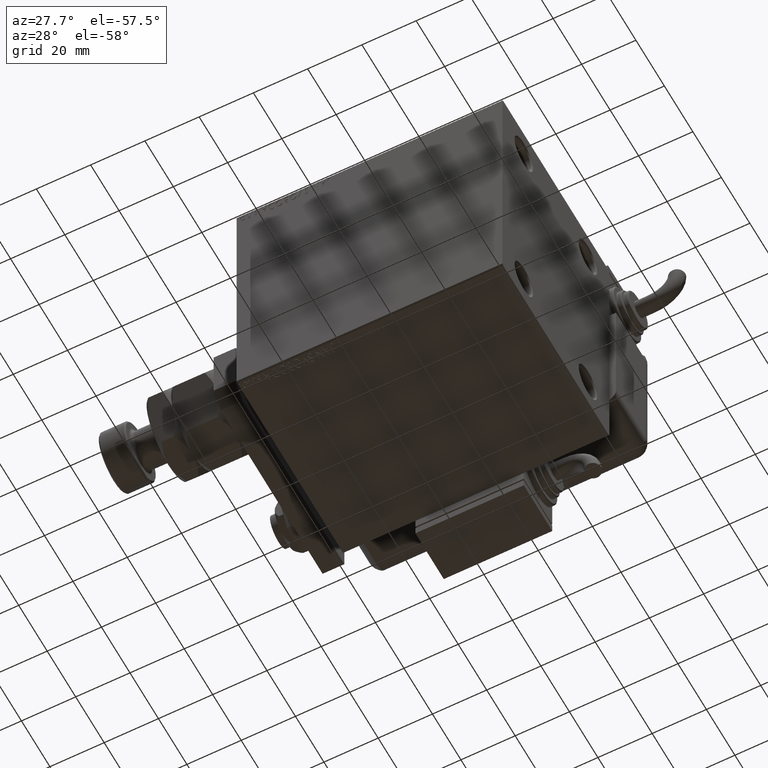
[diagram: clean part render]
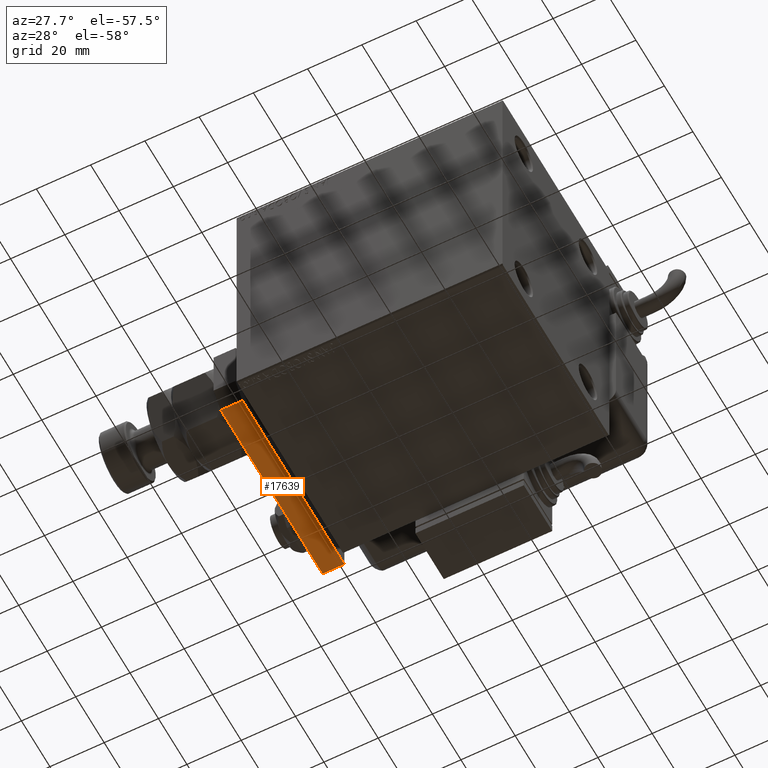
[diagram: same view with one face highlighted and labeled with its STEP entity id]
A machine part, auxiliary view. The second image highlights one B-rep face of the part: STEP entity #17639.
In plain terms, the highlighted planar face has unit normal (0, -0, 1).
Its self-contained STEP definition (entity closure, byte-faithful):
#1888 = VECTOR ( 'NONE', #42378, 1000.000000000000000 ) ;
#2789 = FACE_OUTER_BOUND ( 'NONE', #21053, .T. ) ;
#3083 = LINE ( 'NONE', #60379, #41068 ) ;
#3401 = PLANE ( 'NONE',  #25766 ) ;
#3408 = CARTESIAN_POINT ( 'NONE',  ( 15.00000000000000888, 5.000000000000004441, 0.000000000000000000 ) ) ;
#4770 = LINE ( 'NONE', #56476, #1888 ) ;
#4808 = VECTOR ( 'NONE', #41402, 1000.000000000000000 ) ;
#15578 = ORIENTED_EDGE ( 'NONE', *, *, #27892, .F. ) ;
#17039 = CARTESIAN_POINT ( 'NONE',  ( 15.00000000000000888, 5.000000000000004441, 8.000000000000000000 ) ) ;
#17639 = ADVANCED_FACE ( 'NONE', ( #2789 ), #3401, .F. ) ;
#18888 = VECTOR ( 'NONE', #27055, 1000.000000000000000 ) ;
#20056 = EDGE_CURVE ( 'NONE', #47089, #26260, #4770, .T. ) ;
#21053 = EDGE_LOOP ( 'NONE', ( #15578, #29195, #36664, #56003 ) ) ;
#22818 = DIRECTION ( 'NONE',  ( 6.802837160693362871E-17, -1.000000000000000000, 0.000000000000000000 ) ) ;
#25766 = AXIS2_PLACEMENT_3D ( 'NONE', #45718, #56332, #22818 ) ;
#26260 = VERTEX_POINT ( 'NONE', #40584 ) ;
#27055 = DIRECTION ( 'NONE',  ( 0.000000000000000000, 0.000000000000000000, -1.000000000000000000 ) ) ;
#27892 = EDGE_CURVE ( 'NONE', #57665, #45123, #3083, .T. ) ;
#29195 = ORIENTED_EDGE ( 'NONE', *, *, #58117, .T. ) ;
#31450 = LINE ( 'NONE', #17039, #18888 ) ;
#31590 = DIRECTION ( 'NONE',  ( -6.802837160693361638E-17, 1.000000000000000000, 0.000000000000000000 ) ) ;
#36664 = ORIENTED_EDGE ( 'NONE', *, *, #20056, .T. ) ;
#40584 = CARTESIAN_POINT ( 'NONE',  ( 15.00000000000000355, 76.50000000000000000, 0.000000000000000000 ) ) ;
#41068 = VECTOR ( 'NONE', #31590, 1000.000000000000000 ) ;
#41402 = DIRECTION ( 'NONE',  ( -0.000000000000000000, -0.000000000000000000, -1.000000000000000000 ) ) ;
#42378 = DIRECTION ( 'NONE',  ( -6.802837160693361638E-17, 1.000000000000000000, 0.000000000000000000 ) ) ;
#45123 = VERTEX_POINT ( 'NONE', #49203 ) ;
#45718 = CARTESIAN_POINT ( 'NONE',  ( 15.00000000000000888, 9.629649721936179265E-32, 8.000000000000000000 ) ) ;
#46707 = LINE ( 'NONE', #61395, #4808 ) ;
#47089 = VERTEX_POINT ( 'NONE', #3408 ) ;
#49203 = CARTESIAN_POINT ( 'NONE',  ( 15.00000000000000355, 76.50000000000000000, 8.000000000000000000 ) ) ;
#52179 = EDGE_CURVE ( 'NONE', #45123, #26260, #46707, .T. ) ;
#53216 = CARTESIAN_POINT ( 'NONE',  ( 15.00000000000000888, 5.000000000000004441, 8.000000000000000000 ) ) ;
#56003 = ORIENTED_EDGE ( 'NONE', *, *, #52179, .F. ) ;
#56332 = DIRECTION ( 'NONE',  ( -1.000000000000000000, -6.802837160693362871E-17, 0.000000000000000000 ) ) ;
#56476 = CARTESIAN_POINT ( 'NONE',  ( 15.00000000000000888, 9.629649721936179265E-32, 0.000000000000000000 ) ) ;
#57665 = VERTEX_POINT ( 'NONE', #53216 ) ;
#58117 = EDGE_CURVE ( 'NONE', #57665, #47089, #31450, .T. ) ;
#60379 = CARTESIAN_POINT ( 'NONE',  ( 15.00000000000000888, 9.629649721936179265E-32, 8.000000000000000000 ) ) ;
#61395 = CARTESIAN_POINT ( 'NONE',  ( 15.00000000000000355, 76.50000000000000000, 8.000000000000000000 ) ) ;